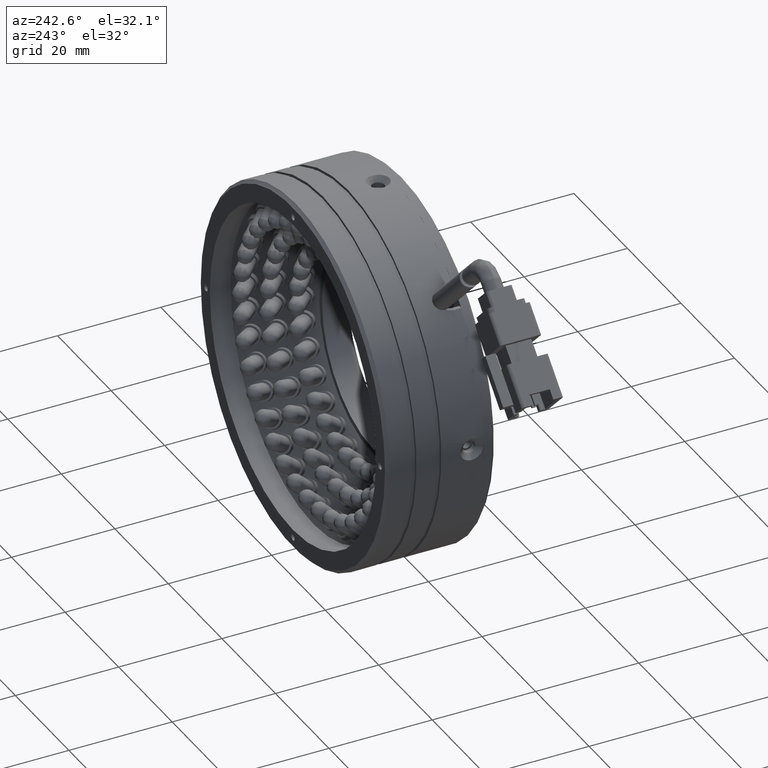
[diagram: clean part render]
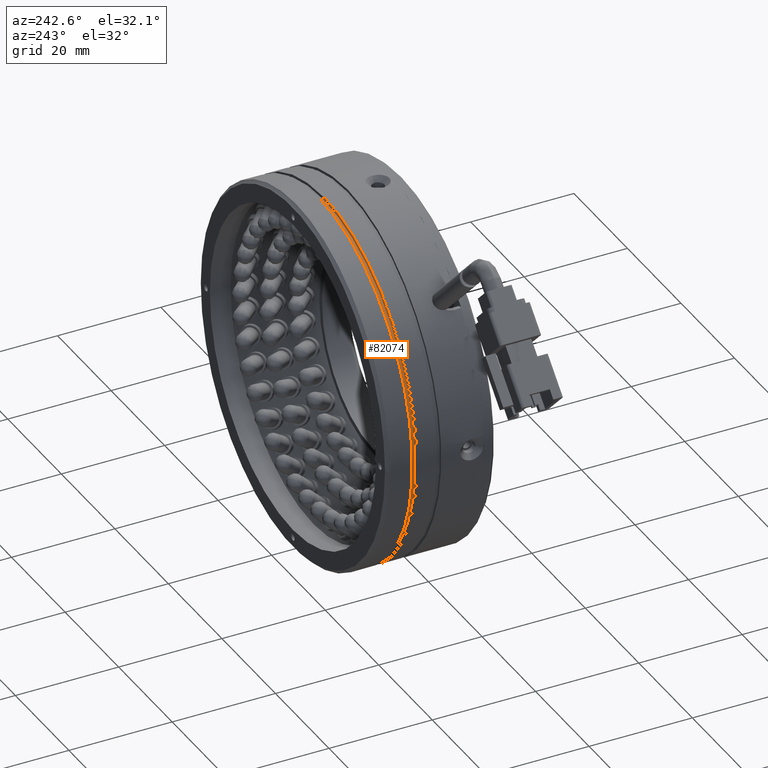
[diagram: same view with one face highlighted and labeled with its STEP entity id]
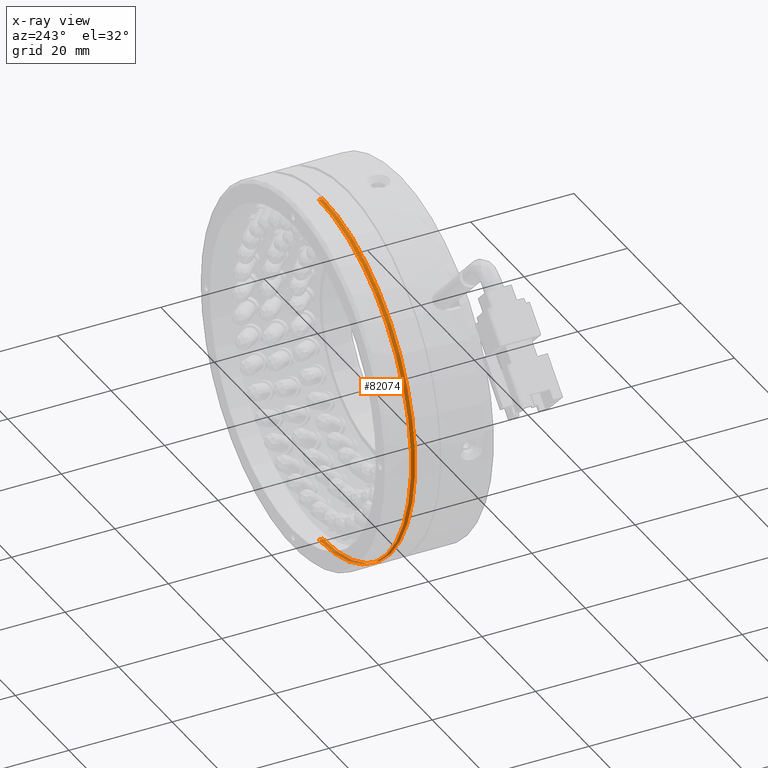
[diagram: x-ray of the same camera — body ghosted, the highlighted face saturated]
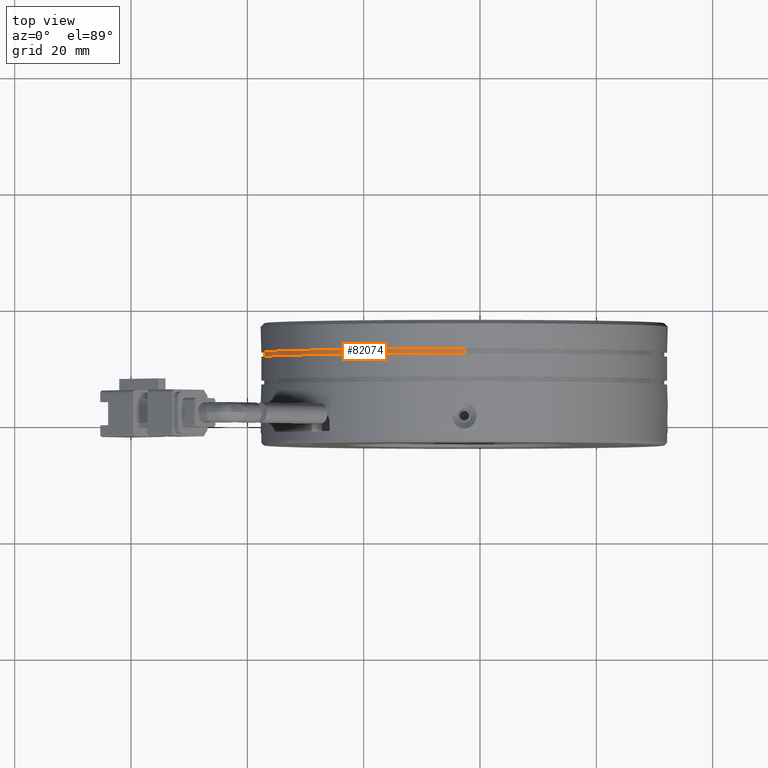
[diagram: same view with one face highlighted and labeled with its STEP entity id]
A machine part, auxiliary view. The second image highlights one B-rep face of the part: STEP entity #82074.
The next image is the same camera in x-ray: the body ghosted, the highlighted face saturated — about 5% of this face is hidden behind the body in this view.
A second angle (top view) of the same face is appended — the face is thin or edge-on in the first view.
In plain terms, the highlighted cylindrical surface (partial cylindrical patch) has radius 34.5 mm, axis along (-0, -1, -0).
Its self-contained STEP definition (entity closure, byte-faithful):
#2612 = VERTEX_POINT ( 'NONE', #15079 ) ;
#5143 = CARTESIAN_POINT ( 'NONE',  ( -2.716071020391485700, 12.30727133510869100, 34.50000000000000000 ) ) ;
#6713 = CARTESIAN_POINT ( 'NONE',  ( -2.716071020391485700, -13.32601881678534500, 34.50000000000000000 ) ) ;
#6732 = FACE_OUTER_BOUND ( 'NONE', #58147, .T. ) ;
#7166 = DIRECTION ( 'NONE',  ( -0.0000000000000000000, -1.000000000000000000, -0.0000000000000000000 ) ) ;
#9572 = CIRCLE ( 'NONE', #49480, 34.50000000000000000 ) ;
#12517 = CARTESIAN_POINT ( 'NONE',  ( -2.716071020391490200, 11.50727133510869200, -1.131636017531745300E-015 ) ) ;
#13893 = EDGE_CURVE ( 'NONE', #79897, #2612, #42859, .T. ) ;
#15079 = CARTESIAN_POINT ( 'NONE',  ( -2.716071020391485700, 11.50727133510869200, 34.50000000000000000 ) ) ;
#16215 = CYLINDRICAL_SURFACE ( 'NONE', #49642, 34.50000000000000000 ) ;
#17029 = EDGE_CURVE ( 'NONE', #56511, #39658, #9572, .T. ) ;
#19119 = VECTOR ( 'NONE', #26944, 1000.000000000000000 ) ;
#19296 = DIRECTION ( 'NONE',  ( 0.0000000000000000000, 0.0000000000000000000, -1.000000000000000000 ) ) ;
#25398 = VECTOR ( 'NONE', #38720, 1000.000000000000000 ) ;
#26070 = CARTESIAN_POINT ( 'NONE',  ( -2.716071020391490200, 11.50727133510869200, -34.50000000000000000 ) ) ;
#26944 = DIRECTION ( 'NONE',  ( -0.0000000000000000000, -1.000000000000000000, -0.0000000000000000000 ) ) ;
#27343 = ORIENTED_EDGE ( 'NONE', *, *, #64879, .T. ) ;
#34110 = DIRECTION ( 'NONE',  ( 0.0000000000000000000, 0.0000000000000000000, -1.000000000000000000 ) ) ;
#34884 = CARTESIAN_POINT ( 'NONE',  ( -2.716071020391490200, 12.30727133510869100, -1.131636017531745300E-015 ) ) ;
#36890 = LINE ( 'NONE', #6713, #19119 ) ;
#38720 = DIRECTION ( 'NONE',  ( -0.0000000000000000000, -1.000000000000000000, -0.0000000000000000000 ) ) ;
#39658 = VERTEX_POINT ( 'NONE', #41191 ) ;
#41191 = CARTESIAN_POINT ( 'NONE',  ( -2.716071020391490200, 12.30727133510869100, -34.50000000000000000 ) ) ;
#41598 = DIRECTION ( 'NONE',  ( 0.0000000000000000000, 0.0000000000000000000, -1.000000000000000000 ) ) ;
#42859 = CIRCLE ( 'NONE', #76112, 34.50000000000000000 ) ;
#45897 = ORIENTED_EDGE ( 'NONE', *, *, #71885, .F. ) ;
#49236 = ORIENTED_EDGE ( 'NONE', *, *, #17029, .T. ) ;
#49480 = AXIS2_PLACEMENT_3D ( 'NONE', #34884, #81761, #41598 ) ;
#49642 = AXIS2_PLACEMENT_3D ( 'NONE', #80717, #7166, #34110 ) ;
#51192 = ORIENTED_EDGE ( 'NONE', *, *, #13893, .T. ) ;
#56511 = VERTEX_POINT ( 'NONE', #5143 ) ;
#58147 = EDGE_LOOP ( 'NONE', ( #45897, #49236, #27343, #51192 ) ) ;
#59322 = DIRECTION ( 'NONE',  ( 0.0000000000000000000, 1.000000000000000000, 0.0000000000000000000 ) ) ;
#60974 = LINE ( 'NONE', #78891, #25398 ) ;
#64879 = EDGE_CURVE ( 'NONE', #39658, #79897, #60974, .T. ) ;
#71885 = EDGE_CURVE ( 'NONE', #56511, #2612, #36890, .T. ) ;
#76112 = AXIS2_PLACEMENT_3D ( 'NONE', #12517, #59322, #19296 ) ;
#78891 = CARTESIAN_POINT ( 'NONE',  ( -2.716071020391490200, -13.32601881678534500, -34.50000000000000000 ) ) ;
#79897 = VERTEX_POINT ( 'NONE', #26070 ) ;
#80717 = CARTESIAN_POINT ( 'NONE',  ( -2.716071020391490200, -13.32601881678534500, -1.131636017531745300E-015 ) ) ;
#81761 = DIRECTION ( 'NONE',  ( -0.0000000000000000000, -1.000000000000000000, -0.0000000000000000000 ) ) ;
#82074 = ADVANCED_FACE ( 'NONE', ( #6732 ), #16215, .T. ) ;